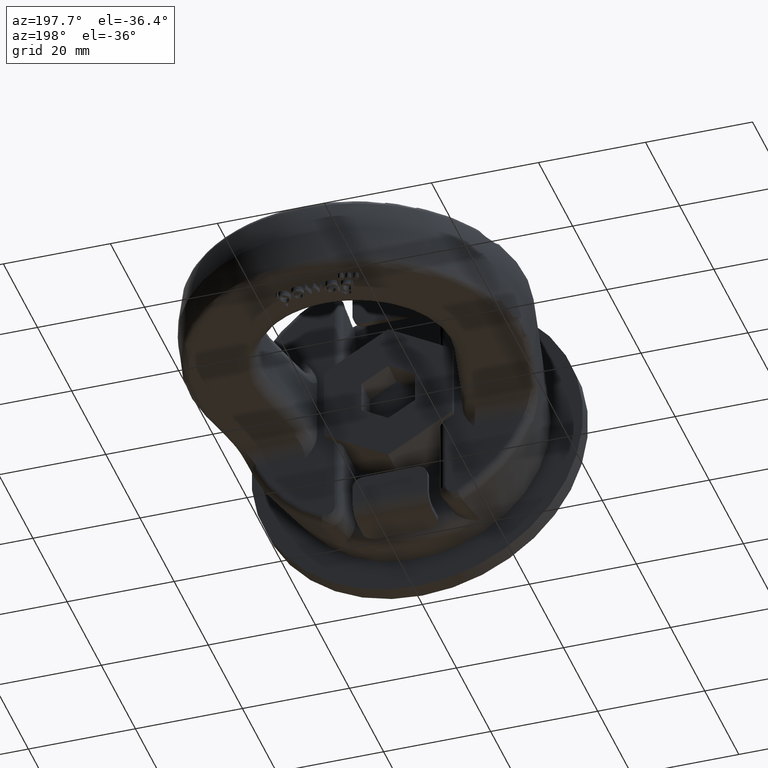
[diagram: clean part render]
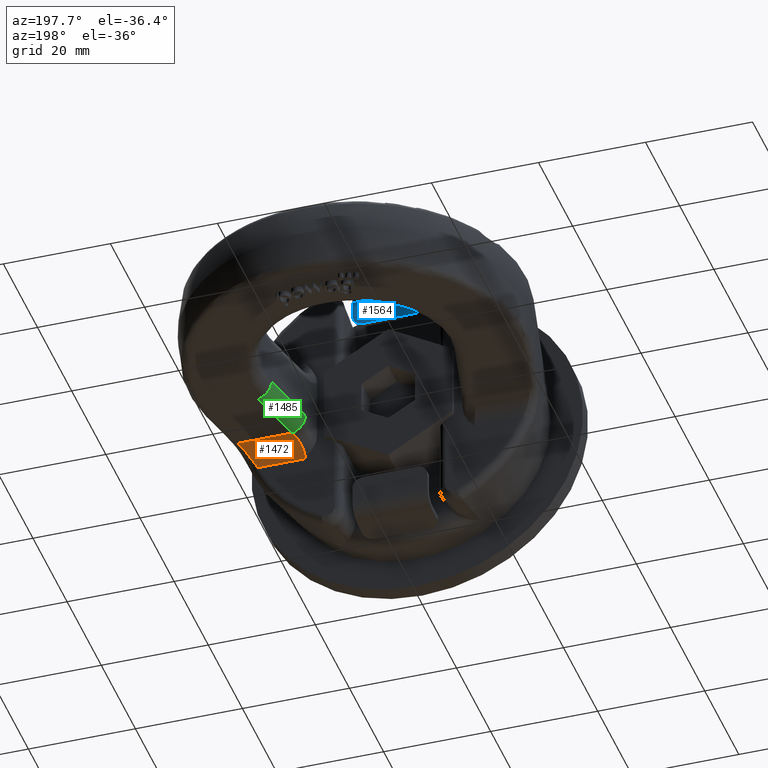
[diagram: same view with three faces highlighted in distinct colors, each labeled with its STEP entity id]
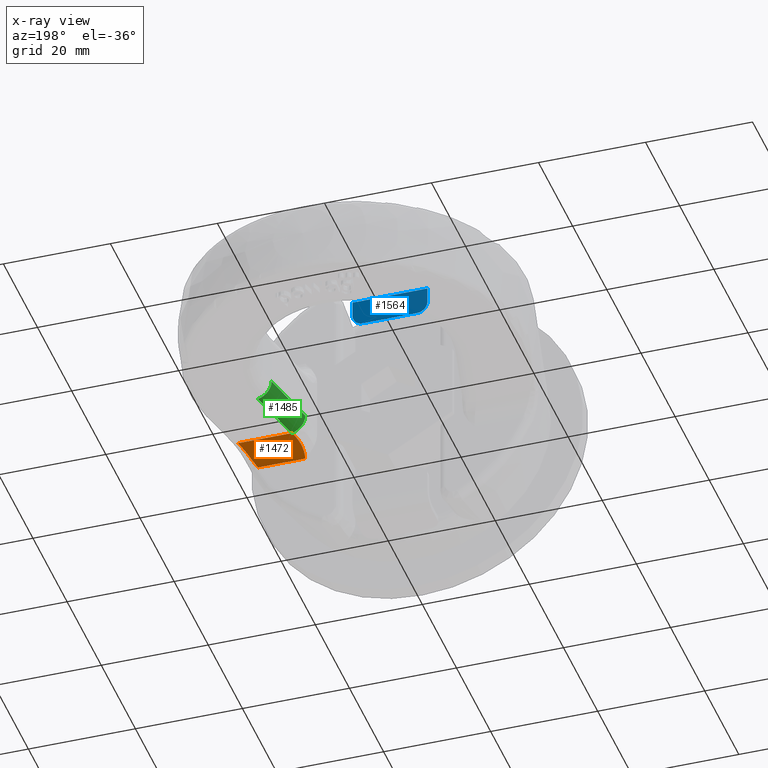
[diagram: x-ray of the same camera — body ghosted, the three highlighted faces saturated]
A machine part, auxiliary view with three faces highlighted in distinct colors.
The next image is the same camera in x-ray (body ghosted, the three faces saturated) — at least one of them is partly hidden behind the body in this view.
Their STEP definitions:

[orange] entity #1472 — the highlighted cylindrical surface (edge-blend (fillet) strip) has radius 3.5 mm, axis along (1, 0, 0).
#1091=ELLIPSE('',#5312,3.76985097697133,3.5);
#1105=CYLINDRICAL_SURFACE('',#5313,3.5);
#1239=FACE_OUTER_BOUND('',#2009,.T.);
#1472=ADVANCED_FACE('',(#1239),#1105,.F.);
#2009=EDGE_LOOP('',(#3426,#3427,#3428,#3429));
#2188=LINE('',#6767,#2468);
#2287=LINE('',#8294,#2595);
#2468=VECTOR('',#5522,1.);
#2595=VECTOR('',#5887,1.);
#3426=ORIENTED_EDGE('',*,*,#4412,.F.);
#3427=ORIENTED_EDGE('',*,*,#4693,.T.);
#3428=ORIENTED_EDGE('',*,*,#4653,.F.);
#3429=ORIENTED_EDGE('',*,*,#4694,.T.);
#4021=VERTEX_POINT('',#6766);
#4022=VERTEX_POINT('',#6768);
#4169=VERTEX_POINT('',#8293);
#4170=VERTEX_POINT('',#8295);
#4412=EDGE_CURVE('',#4021,#4022,#2188,.T.);
#4653=EDGE_CURVE('',#4169,#4170,#2287,.T.);
#4693=EDGE_CURVE('',#4021,#4170,#1091,.T.);
#4694=EDGE_CURVE('',#4169,#4022,#5072,.T.);
#5072=B_SPLINE_CURVE_WITH_KNOTS('',3,(#8560,#8561,#8562,#8563,#8564,#8565,
#8566,#8567,#8568,#8569,#8570,#8571,#8572,#8573,#8574,#8575),
 .UNSPECIFIED.,.F.,.F.,(4,3,3,3,3,4),(0.,0.210743159067725,0.423655606110742,
0.644781286071129,0.875384703753164,1.),.UNSPECIFIED.);
#5312=AXIS2_PLACEMENT_3D('',#8559,#5934,#5935);
#5313=AXIS2_PLACEMENT_3D('',#8576,#5936,#5937);
#5522=DIRECTION('',(1.,0.,2.34291072916505E-15));
#5887=DIRECTION('',(-1.,0.,-2.34291072916505E-15));
#5934=DIRECTION('',(-0.92841866200554,0.371535715698833,-2.17520204436984E-15));
#5935=DIRECTION('',(0.371535715698833,0.92841866200554,8.7047501457881E-16));
#5936=DIRECTION('',(1.,0.,2.34291072916505E-15));
#5937=DIRECTION('',(2.47817639425258E-15,0.,-1.));
#6766=CARTESIAN_POINT('',(15.8378374688964,19.,-10.5));
#6767=CARTESIAN_POINT('',(13.5919777071961,19.,-10.5));
#6768=CARTESIAN_POINT('',(24.6702046091604,19.,-10.5));
#8293=CARTESIAN_POINT('',(27.3333532184675,22.5,-6.99999999999994));
#8294=CARTESIAN_POINT('',(-64.,22.5,-7.00000000000016));
#8295=CARTESIAN_POINT('',(17.2384717497033,22.5,-6.99999999999997));
#8559=CARTESIAN_POINT('',(17.2384717497033,22.5,-10.5));
#8560=CARTESIAN_POINT('',(27.3333532184675,22.5,-6.99999999999994));
#8561=CARTESIAN_POINT('',(27.20381448664,22.092283053225,-6.99999999999994));
#8562=CARTESIAN_POINT('',(27.0539986395582,21.6853740202556,-7.07308571307632));
#8563=CARTESIAN_POINT('',(26.8938225647676,21.3122323198053,-7.20770476143388));
#8564=CARTESIAN_POINT('',(26.7318655931394,20.93494189193,-7.34382055415734));
#8565=CARTESIAN_POINT('',(26.5548197113304,20.5823055446819,-7.54615664045747));
#8566=CARTESIAN_POINT('',(26.3694470596717,20.2801472906879,-7.79403363861259));
#8567=CARTESIAN_POINT('',(26.1769255057761,19.9663362939699,-8.05147002112523));
#8568=CARTESIAN_POINT('',(25.9703466535529,19.6992665200438,-8.3640741588427));
#8569=CARTESIAN_POINT('',(25.7569733732528,19.4963307869192,-8.70334442410606));
#8570=CARTESIAN_POINT('',(25.5344778757051,19.2847190666126,-9.05711930335406));
#8571=CARTESIAN_POINT('',(25.2990032532943,19.1375094663156,-9.44800804975387));
#8572=CARTESIAN_POINT('',(25.0614937181434,19.0619049143233,-9.84463584027984));
#8573=CARTESIAN_POINT('',(24.9320700086742,19.0207064775305,-10.0607662785623));
#8574=CARTESIAN_POINT('',(24.8008692523964,19.,-10.2807126881758));
#8575=CARTESIAN_POINT('',(24.6702046091604,19.,-10.5));
#8576=CARTESIAN_POINT('',(13.5919777071961,22.5,-10.5));

[blue] entity #1564 — the highlighted planar face has unit normal (0, -1, 0).
#1324=FACE_OUTER_BOUND('',#2108,.T.);
#1564=ADVANCED_FACE('',(#1324),#1694,.F.);
#1694=PLANE('',#5396);
#1779=CIRCLE('',#5394,2.);
#1780=CIRCLE('',#5395,2.);
#2108=EDGE_LOOP('',(#3819,#3820,#3821,#3822,#3823,#3824));
#2366=LINE('',#9617,#2702);
#2374=LINE('',#9639,#2710);
#2379=LINE('',#9652,#2715);
#2383=LINE('',#9666,#2719);
#2702=VECTOR('',#6158,1.);
#2710=VECTOR('',#6174,1.);
#2715=VECTOR('',#6183,1.);
#2719=VECTOR('',#6205,1.);
#3819=ORIENTED_EDGE('',*,*,#4851,.T.);
#3820=ORIENTED_EDGE('',*,*,#4859,.T.);
#3821=ORIENTED_EDGE('',*,*,#4845,.T.);
#3822=ORIENTED_EDGE('',*,*,#4860,.F.);
#3823=ORIENTED_EDGE('',*,*,#4835,.F.);
#3824=ORIENTED_EDGE('',*,*,#4861,.T.);
#4270=VERTEX_POINT('',#9616);
#4271=VERTEX_POINT('',#9618);
#4280=VERTEX_POINT('',#9638);
#4281=VERTEX_POINT('',#9640);
#4286=VERTEX_POINT('',#9651);
#4287=VERTEX_POINT('',#9653);
#4835=EDGE_CURVE('',#4270,#4271,#2366,.T.);
#4845=EDGE_CURVE('',#4281,#4280,#2374,.T.);
#4851=EDGE_CURVE('',#4287,#4286,#2379,.T.);
#4859=EDGE_CURVE('',#4286,#4281,#1779,.T.);
#4860=EDGE_CURVE('',#4271,#4280,#2383,.T.);
#4861=EDGE_CURVE('',#4270,#4287,#1780,.T.);
#5394=AXIS2_PLACEMENT_3D('',#9665,#6203,#6204);
#5395=AXIS2_PLACEMENT_3D('',#9667,#6206,#6207);
#5396=AXIS2_PLACEMENT_3D('',#9668,#6208,#6209);
#6158=DIRECTION('',(0.,0.,1.));
#6174=DIRECTION('',(0.,0.,1.));
#6183=DIRECTION('',(-1.,0.,0.));
#6203=DIRECTION('',(0.,1.,0.));
#6204=DIRECTION('',(0.,0.,-1.));
#6205=DIRECTION('',(-1.,0.,0.));
#6206=DIRECTION('',(0.,1.,0.));
#6207=DIRECTION('',(0.,0.,-1.));
#6208=DIRECTION('',(0.,-1.,0.));
#6209=DIRECTION('',(0.,0.,-1.));
#9616=CARTESIAN_POINT('',(7.,19.,19.));
#9617=CARTESIAN_POINT('',(7.,19.,17.));
#9618=CARTESIAN_POINT('',(7.,19.,22.));
#9638=CARTESIAN_POINT('',(-7.,19.,22.));
#9639=CARTESIAN_POINT('',(-7.,19.,17.));
#9640=CARTESIAN_POINT('',(-7.,19.,19.));
#9651=CARTESIAN_POINT('',(-5.,19.,17.));
#9652=CARTESIAN_POINT('',(7.,19.,17.));
#9653=CARTESIAN_POINT('',(5.,19.,17.));
#9665=CARTESIAN_POINT('',(-5.,19.,19.));
#9666=CARTESIAN_POINT('',(7.,19.,22.));
#9667=CARTESIAN_POINT('',(5.,19.,19.));
#9668=CARTESIAN_POINT('',(7.,19.,17.));

[green] entity #1485 — the highlighted cylindrical surface (edge-blend (fillet) strip) has radius 2.8 mm, axis along (-0.217, -0.9762, -0).
#1108=CYLINDRICAL_SURFACE('',#5331,2.8);
#1252=FACE_OUTER_BOUND('',#2022,.T.);
#1485=ADVANCED_FACE('',(#1252),#1108,.T.);
#1764=CIRCLE('',#5329,2.8);
#1765=CIRCLE('',#5330,2.8);
#2022=EDGE_LOOP('',(#3478,#3479,#3480,#3481));
#2197=LINE('',#6933,#2477);
#2288=LINE('',#8296,#2596);
#2477=VECTOR('',#5575,1.);
#2596=VECTOR('',#5888,1.);
#3478=ORIENTED_EDGE('',*,*,#4705,.F.);
#3479=ORIENTED_EDGE('',*,*,#4451,.F.);
#3480=ORIENTED_EDGE('',*,*,#4706,.T.);
#3481=ORIENTED_EDGE('',*,*,#4654,.F.);
#4048=VERTEX_POINT('',#6915);
#4055=VERTEX_POINT('',#6934);
#4163=VERTEX_POINT('',#8276);
#4170=VERTEX_POINT('',#8295);
#4451=EDGE_CURVE('',#4048,#4055,#2197,.T.);
#4654=EDGE_CURVE('',#4170,#4163,#2288,.T.);
#4705=EDGE_CURVE('',#4055,#4170,#1764,.T.);
#4706=EDGE_CURVE('',#4048,#4163,#1765,.T.);
#5329=AXIS2_PLACEMENT_3D('',#8700,#5968,#5969);
#5330=AXIS2_PLACEMENT_3D('',#8719,#5970,#5971);
#5331=AXIS2_PLACEMENT_3D('',#8720,#5972,#5973);
#5575=DIRECTION('',(-0.217024111805407,-0.97616624347243,-6.333894847173E-16));
#5888=DIRECTION('',(0.217024111805407,0.97616624347243,6.333894847173E-16));
#5968=DIRECTION('',(-0.217024111805406,-0.97616624347243,-5.084681200364E-16));
#5969=DIRECTION('',(0.97616624347243,-0.217024111805406,2.16840434497101E-15));
#5970=DIRECTION('',(-0.217024111805407,-0.976166243472429,-5.08468120036403E-16));
#5971=DIRECTION('',(0.97616624347243,-0.217024111805407,2.16840434497101E-15));
#5972=DIRECTION('',(-0.217024111805407,-0.97616624347243,-6.333894847173E-16));
#5973=DIRECTION('',(-0.97616624347243,0.217024111805407,-2.16840434497101E-15));
#6915=CARTESIAN_POINT('',(17.0829092607675,34.7020780434054,-4.19999999999997));
#6933=CARTESIAN_POINT('',(14.3701078631999,22.5,-4.19999999999997));
#6934=CARTESIAN_POINT('',(14.5052062679805,23.1076675130551,-4.19999999999997));
#8276=CARTESIAN_POINT('',(19.8161747424903,34.0944105303503,-6.99999999999996));
#8295=CARTESIAN_POINT('',(17.2384717497033,22.5,-6.99999999999997));
#8296=CARTESIAN_POINT('',(19.8161747424903,34.0944105303502,-6.99999999999996));
#8700=CARTESIAN_POINT('',(17.2384717497033,22.5,-4.19999999999997));
#8719=CARTESIAN_POINT('',(19.8161747424903,34.0944105303503,-4.19999999999996));
#8720=CARTESIAN_POINT('',(25.5936508722821,60.0812795627983,-4.19999999999994));